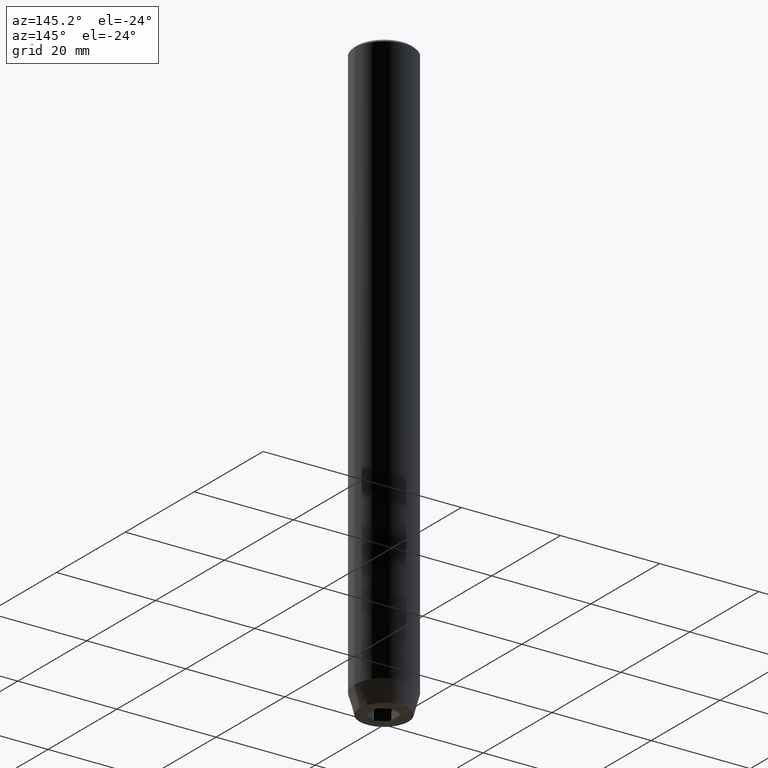
[diagram: clean part render]
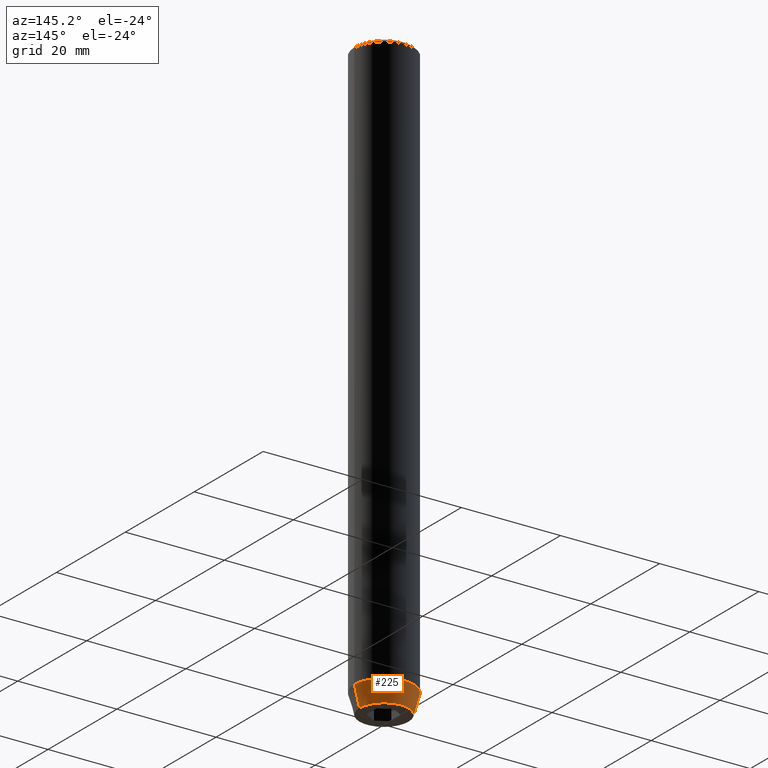
[diagram: same view with one face highlighted and labeled with its STEP entity id]
A machine part, auxiliary view. The second image highlights one B-rep face of the part: STEP entity #225.
In plain terms, the highlighted conical surface has half-angle 15 deg.
Its self-contained STEP definition (entity closure, byte-faithful):
#22 = CARTESIAN_POINT ( 'NONE',  ( 6.000000000000000000, 0.000000000000000000, -115.9999999999999858 ) ) ;
#33 = CARTESIAN_POINT ( 'NONE',  ( 0.000000000000000000, 0.000000000000000000, -115.9999999999999858 ) ) ;
#35 = CARTESIAN_POINT ( 'NONE',  ( -6.000000000000000000, 7.347880794884119736E-16, -115.9999999999999858 ) ) ;
#39 = DIRECTION ( 'NONE',  ( -0.2588190451025214611, 3.169619151431773569E-17, 0.9659258262890680902 ) ) ;
#58 = ORIENTED_EDGE ( 'NONE', *, *, #146, .T. ) ;
#64 = DIRECTION ( 'NONE',  ( -0.000000000000000000, -0.000000000000000000, 1.000000000000000000 ) ) ;
#66 = DIRECTION ( 'NONE',  ( 1.000000000000000000, 0.000000000000000000, 0.000000000000000000 ) ) ;
#83 = VERTEX_POINT ( 'NONE', #470 ) ;
#93 = ORIENTED_EDGE ( 'NONE', *, *, #554, .F. ) ;
#97 = VECTOR ( 'NONE', #218, 1000.000000000000000 ) ;
#98 = DIRECTION ( 'NONE',  ( 1.000000000000000000, 0.000000000000000000, 0.000000000000000000 ) ) ;
#99 = VERTEX_POINT ( 'NONE', #22 ) ;
#130 = CONICAL_SURFACE ( 'NONE', #246, 6.000000000000000000, 0.2617993877991501850 ) ;
#146 = EDGE_CURVE ( 'NONE', #406, #341, #382, .T. ) ;
#174 = AXIS2_PLACEMENT_3D ( 'NONE', #637, #349, #98 ) ;
#178 = CARTESIAN_POINT ( 'NONE',  ( 6.000000000000000000, 0.000000000000000000, -115.9999999999999858 ) ) ;
#196 = CARTESIAN_POINT ( 'NONE',  ( -6.000000000000000000, 7.347880794884119736E-16, -115.9999999999999858 ) ) ;
#218 = DIRECTION ( 'NONE',  ( 0.2588190451025214611, 0.000000000000000000, 0.9659258262890680902 ) ) ;
#225 = ADVANCED_FACE ( 'NONE', ( #374 ), #130, .T. ) ;
#246 = AXIS2_PLACEMENT_3D ( 'NONE', #33, #324, #625 ) ;
#286 = VECTOR ( 'NONE', #39, 1000.000000000000000 ) ;
#307 = ORIENTED_EDGE ( 'NONE', *, *, #308, .T. ) ;
#308 = EDGE_CURVE ( 'NONE', #83, #406, #561, .T. ) ;
#316 = LINE ( 'NONE', #178, #97 ) ;
#324 = DIRECTION ( 'NONE',  ( -0.000000000000000000, -0.000000000000000000, 1.000000000000000000 ) ) ;
#339 = EDGE_CURVE ( 'NONE', #99, #341, #529, .T. ) ;
#341 = VERTEX_POINT ( 'NONE', #196 ) ;
#349 = DIRECTION ( 'NONE',  ( -0.000000000000000000, -0.000000000000000000, 1.000000000000000000 ) ) ;
#374 = FACE_OUTER_BOUND ( 'NONE', #477, .T. ) ;
#382 = LINE ( 'NONE', #35, #286 ) ;
#406 = VERTEX_POINT ( 'NONE', #557 ) ;
#470 = CARTESIAN_POINT ( 'NONE',  ( 4.928203230275505220, 0.000000000000000000, -120.0000000000000000 ) ) ;
#477 = EDGE_LOOP ( 'NONE', ( #307, #58, #610, #93 ) ) ;
#478 = AXIS2_PLACEMENT_3D ( 'NONE', #634, #64, #66 ) ;
#529 = CIRCLE ( 'NONE', #478, 6.000000000000000000 ) ;
#554 = EDGE_CURVE ( 'NONE', #83, #99, #316, .T. ) ;
#557 = CARTESIAN_POINT ( 'NONE',  ( -4.928203230275505220, 6.691594553194331608E-16, -120.0000000000000000 ) ) ;
#561 = CIRCLE ( 'NONE', #174, 4.928203230275505220 ) ;
#610 = ORIENTED_EDGE ( 'NONE', *, *, #339, .F. ) ;
#625 = DIRECTION ( 'NONE',  ( 1.000000000000000000, 0.000000000000000000, 0.000000000000000000 ) ) ;
#634 = CARTESIAN_POINT ( 'NONE',  ( 0.000000000000000000, 0.000000000000000000, -115.9999999999999858 ) ) ;
#637 = CARTESIAN_POINT ( 'NONE',  ( 0.000000000000000000, 0.000000000000000000, -120.0000000000000000 ) ) ;